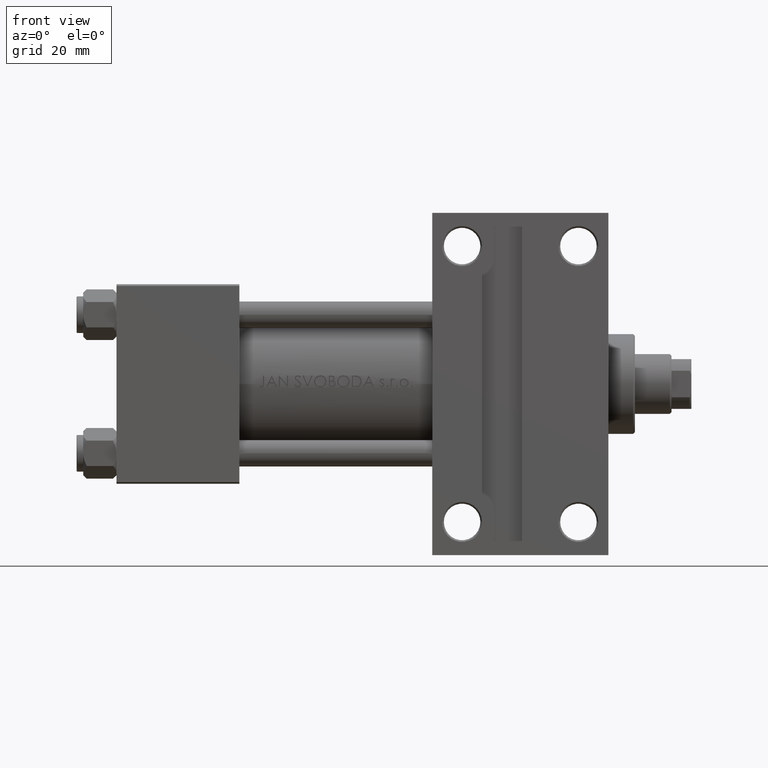
[diagram: clean part render]
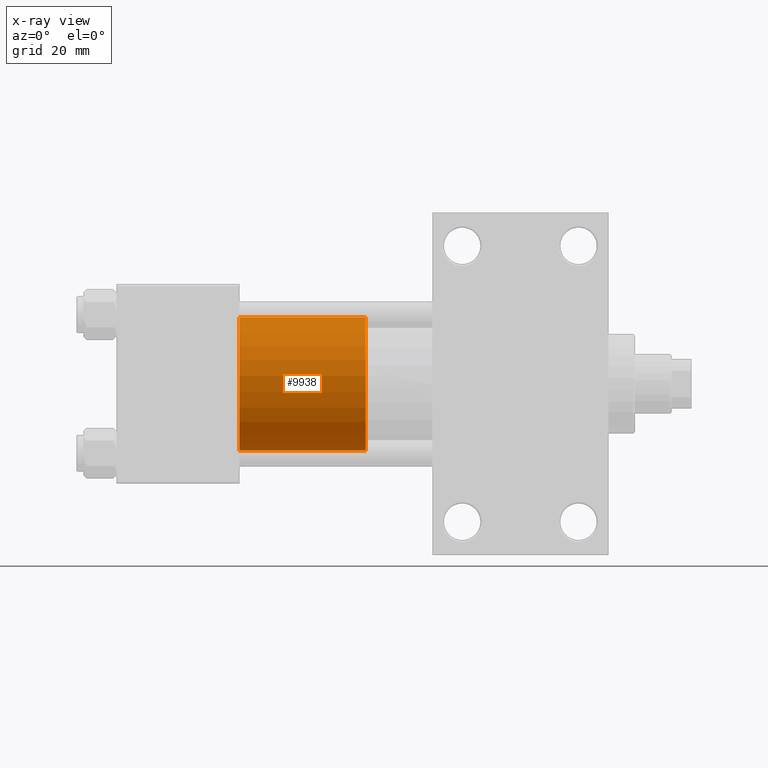
[diagram: x-ray — body ghosted, one internal face saturated and labeled with its STEP entity id]
A machine part, front view, then the same camera in x-ray: the body is ghosted and one INTERNAL B-rep face — a face not visible from any outside direction — is saturated and labeled: STEP entity #9938.
In plain terms, the highlighted cylindrical surface (partial cylindrical patch) has radius 20 mm, axis along (-1, 0, 0).
Its self-contained STEP definition (entity closure, byte-faithful):
#384 = ORIENTED_EDGE ( 'NONE', *, *, #26812, .F. ) ;
#3200 = AXIS2_PLACEMENT_3D ( 'NONE', #18464, #29785, #19194 ) ;
#4157 = CARTESIAN_POINT ( 'NONE',  ( 20.00000000000000000, 2.449293598294706513E-15, 38.00000000000000000 ) ) ;
#4186 = EDGE_CURVE ( 'NONE', #28041, #16294, #20422, .T. ) ;
#5235 = FACE_OUTER_BOUND ( 'NONE', #44329, .T. ) ;
#6178 = CARTESIAN_POINT ( 'NONE',  ( 20.00000000000000000, 2.449293598294706513E-15, 0.000000000000000000 ) ) ;
#6870 = EDGE_CURVE ( 'NONE', #12929, #16294, #48362, .T. ) ;
#9731 = CARTESIAN_POINT ( 'NONE',  ( -20.00000000000000000, 0.000000000000000000, 38.00000000000000000 ) ) ;
#9934 = CARTESIAN_POINT ( 'NONE',  ( -20.00000000000000000, 0.000000000000000000, 0.000000000000000000 ) ) ;
#9938 = ADVANCED_FACE ( 'NONE', ( #5235 ), #35335, .T. ) ;
#11092 = ORIENTED_EDGE ( 'NONE', *, *, #41659, .T. ) ;
#12196 = ORIENTED_EDGE ( 'NONE', *, *, #4186, .T. ) ;
#12929 = VERTEX_POINT ( 'NONE', #13438 ) ;
#13438 = CARTESIAN_POINT ( 'NONE',  ( -20.00000000000000000, 0.000000000000000000, 38.00000000000000000 ) ) ;
#14435 = AXIS2_PLACEMENT_3D ( 'NONE', #43257, #17347, #26198 ) ;
#16294 = VERTEX_POINT ( 'NONE', #9934 ) ;
#17347 = DIRECTION ( 'NONE',  ( 0.000000000000000000, 0.000000000000000000, 1.000000000000000000 ) ) ;
#18464 = CARTESIAN_POINT ( 'NONE',  ( 0.000000000000000000, 0.000000000000000000, 38.00000000000000000 ) ) ;
#19194 = DIRECTION ( 'NONE',  ( -1.000000000000000000, 0.000000000000000000, 0.000000000000000000 ) ) ;
#20422 = CIRCLE ( 'NONE', #33822, 20.00000000000000000 ) ;
#20946 = CARTESIAN_POINT ( 'NONE',  ( 20.00000000000000000, 2.449293598294706513E-15, 38.00000000000000000 ) ) ;
#23146 = LINE ( 'NONE', #4157, #35267 ) ;
#26198 = DIRECTION ( 'NONE',  ( 1.000000000000000000, 0.000000000000000000, 0.000000000000000000 ) ) ;
#26559 = DIRECTION ( 'NONE',  ( 1.000000000000000000, 0.000000000000000000, 0.000000000000000000 ) ) ;
#26812 = EDGE_CURVE ( 'NONE', #42956, #12929, #29365, .T. ) ;
#28041 = VERTEX_POINT ( 'NONE', #6178 ) ;
#29365 = CIRCLE ( 'NONE', #14435, 20.00000000000000000 ) ;
#29785 = DIRECTION ( 'NONE',  ( -0.000000000000000000, -0.000000000000000000, -1.000000000000000000 ) ) ;
#32017 = ORIENTED_EDGE ( 'NONE', *, *, #6870, .F. ) ;
#33822 = AXIS2_PLACEMENT_3D ( 'NONE', #45565, #45808, #26559 ) ;
#34497 = DIRECTION ( 'NONE',  ( -0.000000000000000000, -0.000000000000000000, -1.000000000000000000 ) ) ;
#35267 = VECTOR ( 'NONE', #34497, 1000.000000000000000 ) ;
#35335 = CYLINDRICAL_SURFACE ( 'NONE', #3200, 20.00000000000000000 ) ;
#41659 = EDGE_CURVE ( 'NONE', #42956, #28041, #23146, .T. ) ;
#42956 = VERTEX_POINT ( 'NONE', #20946 ) ;
#43257 = CARTESIAN_POINT ( 'NONE',  ( 0.000000000000000000, 0.000000000000000000, 38.00000000000000000 ) ) ;
#44329 = EDGE_LOOP ( 'NONE', ( #384, #11092, #12196, #32017 ) ) ;
#44431 = DIRECTION ( 'NONE',  ( -0.000000000000000000, -0.000000000000000000, -1.000000000000000000 ) ) ;
#45565 = CARTESIAN_POINT ( 'NONE',  ( 0.000000000000000000, 0.000000000000000000, 0.000000000000000000 ) ) ;
#45808 = DIRECTION ( 'NONE',  ( 0.000000000000000000, 0.000000000000000000, 1.000000000000000000 ) ) ;
#46040 = VECTOR ( 'NONE', #44431, 1000.000000000000000 ) ;
#48362 = LINE ( 'NONE', #9731, #46040 ) ;